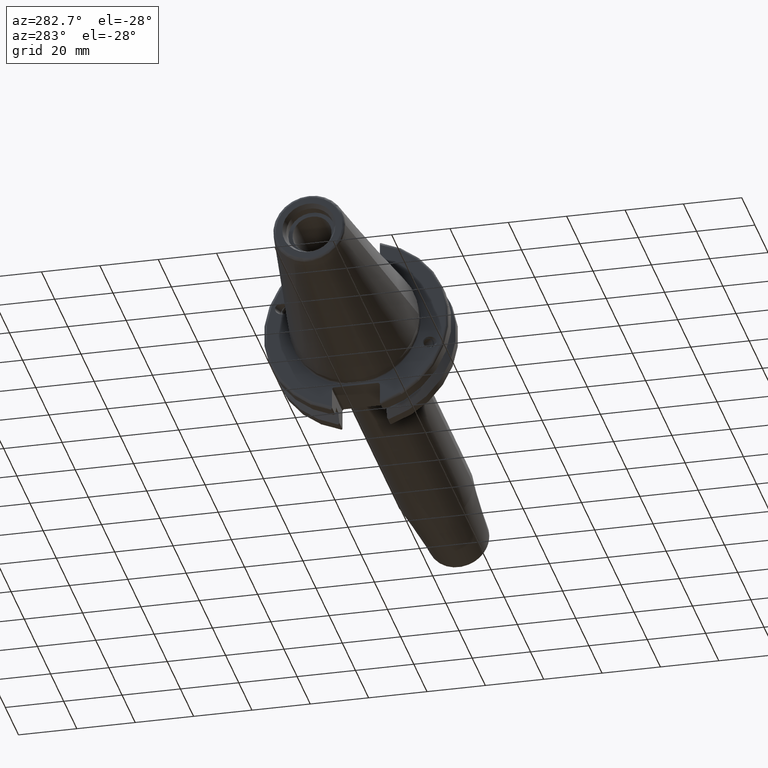
[diagram: clean part render]
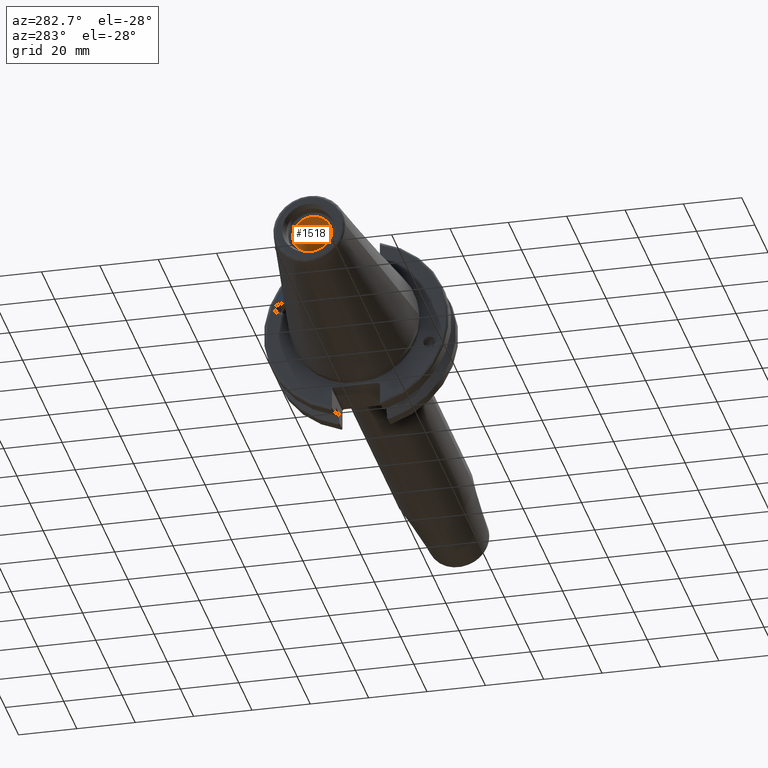
[diagram: same view with one face highlighted and labeled with its STEP entity id]
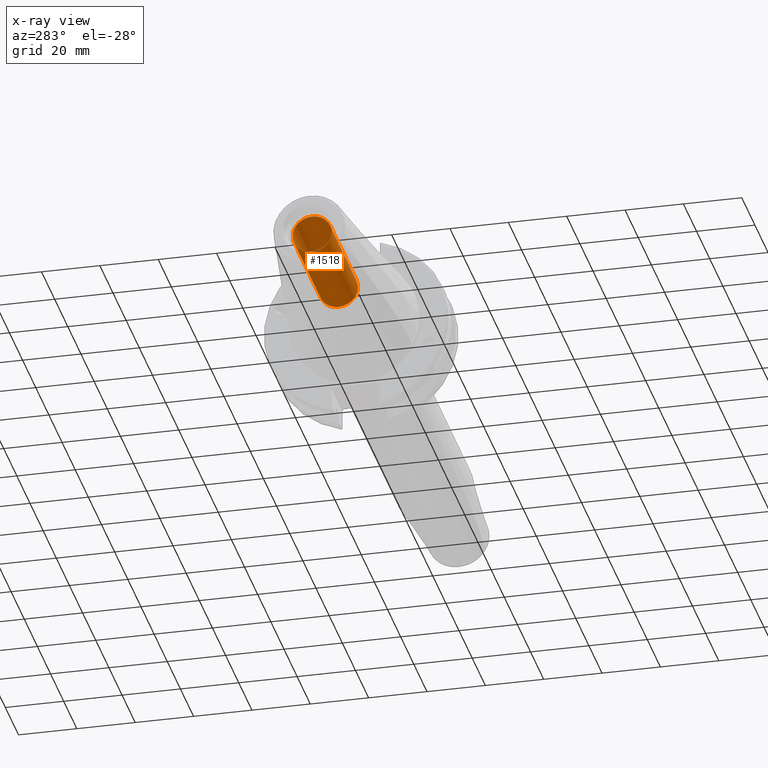
[diagram: x-ray of the same camera — body ghosted, the highlighted face saturated]
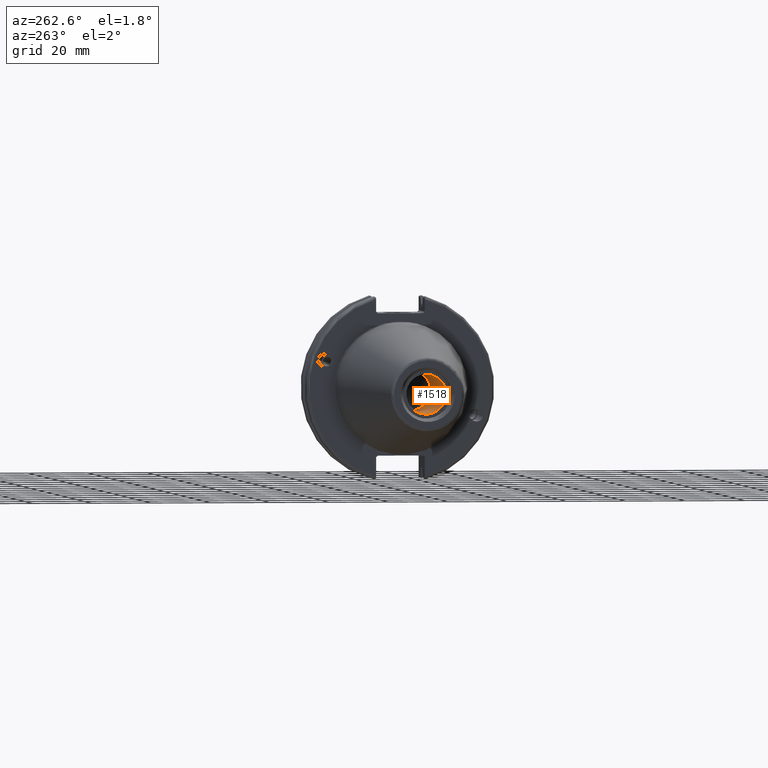
[diagram: same view with one face highlighted and labeled with its STEP entity id]
A machine part, auxiliary view. The second image highlights one B-rep face of the part: STEP entity #1518.
The next image is the same camera in x-ray: the body ghosted, the highlighted face saturated — about 0% of this face is hidden behind the body in this view.
A second angle (auxiliary view) of the same face is appended — the face is thin or edge-on in the first view.
In plain terms, the highlighted cylindrical surface (bore or boss wall) has radius 6.6929 mm, axis along (-1, 0, 0).
Its self-contained STEP definition (entity closure, byte-faithful):
#98=CYLINDRICAL_SURFACE('',#1689,6.6929);
#207=LINE('',#2678,#301);
#301=VECTOR('',#2020,6.6929);
#402=FACE_OUTER_BOUND('',#499,.T.);
#499=EDGE_LOOP('',(#1222,#1223,#1224,#1225));
#594=CIRCLE('',#1688,6.6929);
#595=CIRCLE('',#1690,6.6929);
#719=VERTEX_POINT('',#2672);
#720=VERTEX_POINT('',#2676);
#904=EDGE_CURVE('',#719,#719,#594,.T.);
#906=EDGE_CURVE('',#720,#720,#595,.T.);
#907=EDGE_CURVE('',#720,#719,#207,.T.);
#1222=ORIENTED_EDGE('',*,*,#906,.F.);
#1223=ORIENTED_EDGE('',*,*,#907,.T.);
#1224=ORIENTED_EDGE('',*,*,#904,.F.);
#1225=ORIENTED_EDGE('',*,*,#907,.F.);
#1518=ADVANCED_FACE('',(#402),#98,.F.);
#1688=AXIS2_PLACEMENT_3D('',#2673,#2013,#2014);
#1689=AXIS2_PLACEMENT_3D('',#2675,#2016,#2017);
#1690=AXIS2_PLACEMENT_3D('',#2677,#2018,#2019);
#2013=DIRECTION('center_axis',(-1.,0.,0.));
#2014=DIRECTION('ref_axis',(0.,0.,1.));
#2016=DIRECTION('center_axis',(-1.,0.,0.));
#2017=DIRECTION('ref_axis',(0.,0.,1.));
#2018=DIRECTION('center_axis',(1.,0.,0.));
#2019=DIRECTION('ref_axis',(0.,0.,1.));
#2020=DIRECTION('',(1.,0.,0.));
#2672=CARTESIAN_POINT('',(-23.25,-8.19643856201332E-16,-6.6929));
#2673=CARTESIAN_POINT('Origin',(-23.25,0.,0.));
#2675=CARTESIAN_POINT('Origin',(-45.75,0.,0.));
#2676=CARTESIAN_POINT('',(-63.45,8.19643856201332E-16,-6.6929));
#2677=CARTESIAN_POINT('Origin',(-63.45,0.,0.));
#2678=CARTESIAN_POINT('',(-45.75,-8.19643856201332E-16,-6.6929));